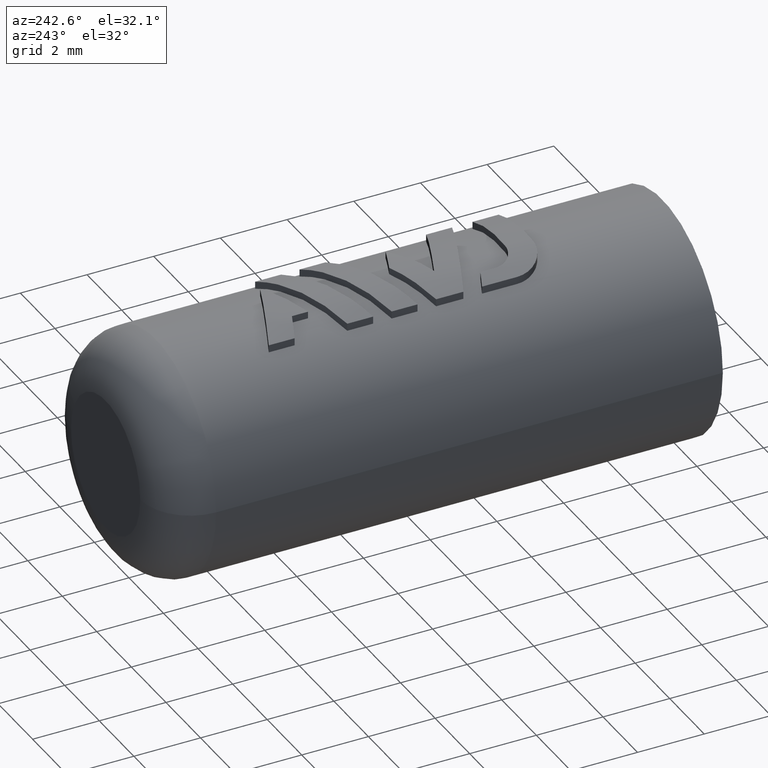
[diagram: clean part render]
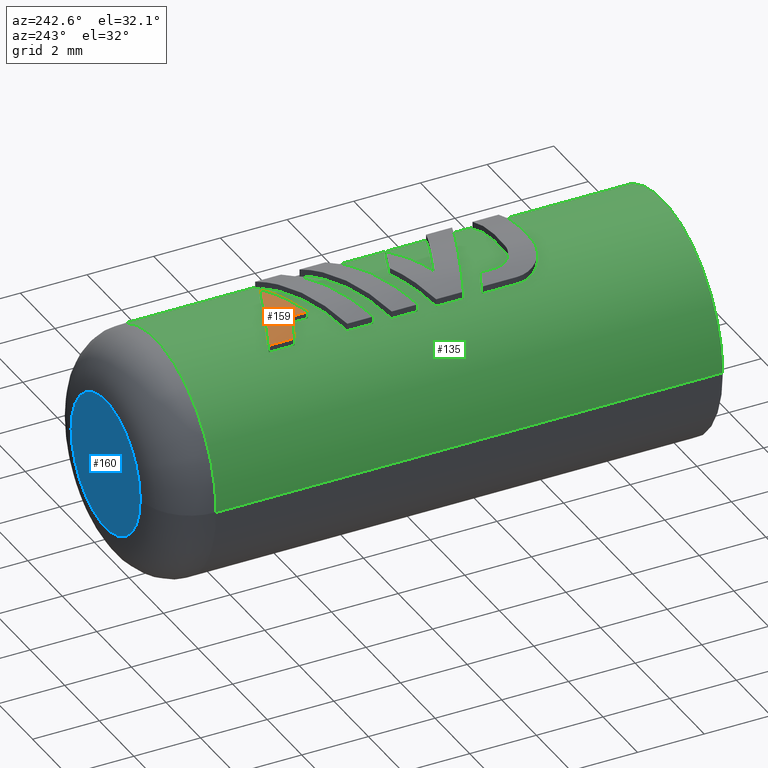
[diagram: same view with three faces highlighted in distinct colors, each labeled with its STEP entity id]
A machine part, auxiliary view with three faces highlighted in distinct colors.
Their STEP definitions:

[orange] entity #159 — the highlighted cylindrical surface (partial cylindrical patch) has radius 3.7 mm, axis along (-0, 1, 0).
#159=ADVANCED_FACE('',(#324),#325,.T.);
#324=FACE_OUTER_BOUND('',#2059,.T.);
#325=CYLINDRICAL_SURFACE('',#2060,3.7);
#2059=EDGE_LOOP('',(#2693,#2694,#2695,#2696,#2697));
#2060=AXIS2_PLACEMENT_3D('',#2698,#2699,#2700);
#2693=ORIENTED_EDGE('',*,*,#2954,.T.);
#2694=ORIENTED_EDGE('',*,*,#2957,.T.);
#2695=ORIENTED_EDGE('',*,*,#2958,.T.);
#2696=ORIENTED_EDGE('',*,*,#2951,.T.);
#2697=ORIENTED_EDGE('',*,*,#2959,.T.);
#2698=CARTESIAN_POINT('',(0.0,23.2725314835387,0.0));
#2699=DIRECTION('',(-0.0,1.0,0.0));
#2700=DIRECTION('',(1.0,0.0,-6.12323399573677E-17));
#2951=EDGE_CURVE('',#3300,#3298,#3301,.T.);
#2954=EDGE_CURVE('',#3305,#3303,#3306,.T.);
#2957=EDGE_CURVE('',#3303,#3308,#3310,.T.);
#2958=EDGE_CURVE('',#3308,#3300,#3311,.T.);
#2959=EDGE_CURVE('',#3298,#3305,#3312,.T.);
#3298=VERTEX_POINT('',#4554);
#3300=VERTEX_POINT('',#4557);
#3301=LINE('',#4558,#4559);
#3303=VERTEX_POINT('',#4562);
#3305=VERTEX_POINT('',#4565);
#3306=LINE('',#4566,#4567);
#3308=VERTEX_POINT('',#4570);
#3310=ELLIPSE('',#4573,3.99032017960652,3.7);
#3311=ELLIPSE('',#4574,3.99050633204291,3.7);
#3312=ELLIPSE('',#4575,3.99098610789636,3.7);
#4554=CARTESIAN_POINT('',(-1.50017849999999,11.810076438508,3.3822277374739));
#4557=CARTESIAN_POINT('',(-1.50017849999999,12.58459659544,3.3822277374739));
#4558=CARTESIAN_POINT('',(-1.50017849999999,23.2725314835387,3.38222773747389));
#4559=VECTOR('',#4984,1000.0);
#4562=CARTESIAN_POINT('',(-0.807717440271992,11.048320467,3.61076065901362));
#4565=CARTESIAN_POINT('',(-0.807717440271994,11.530100458664,3.61076065901362));
#4566=CARTESIAN_POINT('',(-0.807717440271992,23.2725314835387,3.61076065901362));
#4567=VECTOR('',#4987,1000.0);
#4570=CARTESIAN_POINT('',(0.74776430669801,11.676485876456,3.62365127207744));
#4573=AXIS2_PLACEMENT_3D('',#4990,#4991,#4992);
#4574=AXIS2_PLACEMENT_3D('',#4993,#4994,#4995);
#4575=AXIS2_PLACEMENT_3D('',#4996,#4997,#4998);
#4984=DIRECTION('',(0.0,-1.0,0.0));
#4987=DIRECTION('',(0.0,-1.0,0.0));
#4990=CARTESIAN_POINT('',(0.0,11.3745089019216,0.0));
#4991=DIRECTION('',(-0.37445796973655,0.92724388857559,-9.24446373305873E-33));
#4992=DIRECTION('',(-0.92724388857559,-0.37445796973655,-2.46519032881566E-32));
#4993=CARTESIAN_POINT('',(0.0,11.9785633048331,0.0));
#4994=DIRECTION('',(-0.374565060835224,-0.927200633736574,-1.23259516440783E-32));
#4995=DIRECTION('',(0.927200633736574,-0.374565060835224,6.16297582203916E-32));
#4996=CARTESIAN_POINT('',(0.0,11.2035239983702,0.0));
#4997=DIRECTION('',(0.374840859640752,0.927089170438196,3.08148791101958E-33));
#4998=DIRECTION('',(0.927089170438196,-0.374840859640752,1.23259516440783E-32));

[blue] entity #160 — the highlighted planar face has unit normal (0, -1, 0).
#160=ADVANCED_FACE('',(#326),#327,.F.);
#326=FACE_OUTER_BOUND('',#2061,.T.);
#327=PLANE('',#2062);
#2061=EDGE_LOOP('',(#2701,#2702));
#2062=AXIS2_PLACEMENT_3D('',#2703,#2704,#2705);
#2701=ORIENTED_EDGE('',*,*,#2769,.F.);
#2702=ORIENTED_EDGE('',*,*,#2960,.F.);
#2703=CARTESIAN_POINT('',(0.0,16.7,0.0));
#2704=DIRECTION('',(0.0,-1.0,0.0));
#2705=DIRECTION('',(1.0,0.0,-6.12323399573677E-17));
#2769=EDGE_CURVE('',#2994,#2997,#2998,.T.);
#2960=EDGE_CURVE('',#2997,#2994,#3313,.T.);
#2994=VERTEX_POINT('',#4151);
#2997=VERTEX_POINT('',#4154);
#2998=CIRCLE('',#4155,2.0);
#3313=CIRCLE('',#4576,2.0);
#4151=CARTESIAN_POINT('',(2.0,16.7,-1.22464679914735E-16));
#4154=CARTESIAN_POINT('',(-2.0,16.7,3.67394039744206E-16));
#4155=AXIS2_PLACEMENT_3D('',#4602,#4603,#4604);
#4576=AXIS2_PLACEMENT_3D('',#4999,#5000,#5001);
#4602=CARTESIAN_POINT('',(0.0,16.7,0.0));
#4603=DIRECTION('',(0.0,-1.0,0.0));
#4604=DIRECTION('',(1.0,0.0,-6.12323399573677E-17));
#4999=CARTESIAN_POINT('',(0.0,16.7,0.0));
#5000=DIRECTION('',(0.0,-1.0,0.0));
#5001=DIRECTION('',(1.0,0.0,-6.12323399573677E-17));

[green] entity #135 — the highlighted cylindrical surface (partial cylindrical patch) has radius 3.5 mm, axis along (-0, 1, 0).
#135=ADVANCED_FACE('',(#271,#272,#273,#274,#275,#276),#277,.T.);
#271=FACE_OUTER_BOUND('',#2006,.T.);
#272=FACE_BOUND('',#2007,.T.);
#273=FACE_BOUND('',#2008,.T.);
#274=FACE_BOUND('',#2009,.T.);
#275=FACE_BOUND('',#2010,.T.);
#276=FACE_BOUND('',#2011,.T.);
#277=CYLINDRICAL_SURFACE('',#2012,3.5);
#2006=EDGE_LOOP('',(#2462,#2463,#2464,#2465));
#2007=EDGE_LOOP('',(#2466,#2467,#2468,#2469,#2470,#2471,#2472));
#2008=EDGE_LOOP('',(#2473,#2474,#2475,#2476));
#2009=EDGE_LOOP('',(#2477,#2478,#2479,#2480));
#2010=EDGE_LOOP('',(#2481,#2482,#2483,#2484,#2485));
#2011=EDGE_LOOP('',(#2486,#2487,#2488,#2489,#2490,#2491,#2492,#2493,#2494,#2495,#2496,#2497,#2498,#2499,#2500,#2501,#2502,#2503,#2504,#2505,#2506,#2507,#2508,#2509,#2510,#2511,#2512,#2513,#2514,#2515,#2516,#2517,#2518,#2519,#2520,#2521,#2522,#2523,#2524,#2525));
#2012=AXIS2_PLACEMENT_3D('',#2526,#2527,#2528);
#2462=ORIENTED_EDGE('',*,*,#2772,.T.);
#2463=ORIENTED_EDGE('',*,*,#2771,.T.);
#2464=ORIENTED_EDGE('',*,*,#2774,.T.);
#2465=ORIENTED_EDGE('',*,*,#2898,.F.);
#2466=ORIENTED_EDGE('',*,*,#2899,.F.);
#2467=ORIENTED_EDGE('',*,*,#2900,.F.);
#2468=ORIENTED_EDGE('',*,*,#2901,.F.);
#2469=ORIENTED_EDGE('',*,*,#2902,.F.);
#2470=ORIENTED_EDGE('',*,*,#2903,.F.);
#2471=ORIENTED_EDGE('',*,*,#2904,.F.);
#2472=ORIENTED_EDGE('',*,*,#2905,.F.);
#2473=ORIENTED_EDGE('',*,*,#2906,.F.);
#2474=ORIENTED_EDGE('',*,*,#2907,.F.);
#2475=ORIENTED_EDGE('',*,*,#2908,.F.);
#2476=ORIENTED_EDGE('',*,*,#2909,.F.);
#2477=ORIENTED_EDGE('',*,*,#2910,.F.);
#2478=ORIENTED_EDGE('',*,*,#2911,.F.);
#2479=ORIENTED_EDGE('',*,*,#2912,.F.);
#2480=ORIENTED_EDGE('',*,*,#2913,.F.);
#2481=ORIENTED_EDGE('',*,*,#2914,.T.);
#2482=ORIENTED_EDGE('',*,*,#2915,.T.);
#2483=ORIENTED_EDGE('',*,*,#2916,.T.);
#2484=ORIENTED_EDGE('',*,*,#2917,.T.);
#2485=ORIENTED_EDGE('',*,*,#2918,.T.);
#2486=ORIENTED_EDGE('',*,*,#2856,.T.);
#2487=ORIENTED_EDGE('',*,*,#2858,.T.);
#2488=ORIENTED_EDGE('',*,*,#2860,.T.);
#2489=ORIENTED_EDGE('',*,*,#2897,.T.);
#2490=ORIENTED_EDGE('',*,*,#2895,.T.);
#2491=ORIENTED_EDGE('',*,*,#2893,.T.);
#2492=ORIENTED_EDGE('',*,*,#2891,.T.);
#2493=ORIENTED_EDGE('',*,*,#2889,.T.);
#2494=ORIENTED_EDGE('',*,*,#2887,.T.);
#2495=ORIENTED_EDGE('',*,*,#2885,.T.);
#2496=ORIENTED_EDGE('',*,*,#2883,.T.);
#2497=ORIENTED_EDGE('',*,*,#2881,.T.);
#2498=ORIENTED_EDGE('',*,*,#2879,.T.);
#2499=ORIENTED_EDGE('',*,*,#2877,.T.);
#2500=ORIENTED_EDGE('',*,*,#2875,.T.);
#2501=ORIENTED_EDGE('',*,*,#2873,.T.);
#2502=ORIENTED_EDGE('',*,*,#2871,.T.);
#2503=ORIENTED_EDGE('',*,*,#2869,.T.);
#2504=ORIENTED_EDGE('',*,*,#2865,.T.);
#2505=ORIENTED_EDGE('',*,*,#2868,.T.);
#2506=ORIENTED_EDGE('',*,*,#2862,.T.);
#2507=ORIENTED_EDGE('',*,*,#2919,.T.);
#2508=ORIENTED_EDGE('',*,*,#2819,.T.);
#2509=ORIENTED_EDGE('',*,*,#2822,.T.);
#2510=ORIENTED_EDGE('',*,*,#2824,.T.);
#2511=ORIENTED_EDGE('',*,*,#2826,.T.);
#2512=ORIENTED_EDGE('',*,*,#2828,.T.);
#2513=ORIENTED_EDGE('',*,*,#2830,.T.);
#2514=ORIENTED_EDGE('',*,*,#2832,.T.);
#2515=ORIENTED_EDGE('',*,*,#2834,.T.);
#2516=ORIENTED_EDGE('',*,*,#2836,.T.);
#2517=ORIENTED_EDGE('',*,*,#2838,.T.);
#2518=ORIENTED_EDGE('',*,*,#2840,.T.);
#2519=ORIENTED_EDGE('',*,*,#2842,.T.);
#2520=ORIENTED_EDGE('',*,*,#2844,.T.);
#2521=ORIENTED_EDGE('',*,*,#2846,.T.);
#2522=ORIENTED_EDGE('',*,*,#2848,.T.);
#2523=ORIENTED_EDGE('',*,*,#2850,.T.);
#2524=ORIENTED_EDGE('',*,*,#2852,.T.);
#2525=ORIENTED_EDGE('',*,*,#2854,.T.);
#2526=CARTESIAN_POINT('',(0.0,0.0,0.0));
#2527=DIRECTION('',(-0.0,1.0,0.0));
#2528=DIRECTION('',(1.0,0.0,-6.12323399573677E-17));
#2771=EDGE_CURVE('',#2995,#2999,#3001,.T.);
#2772=EDGE_CURVE('',#3002,#2995,#3003,.T.);
#2774=EDGE_CURVE('',#2999,#3004,#3006,.T.);
#2819=EDGE_CURVE('',#3092,#3093,#3094,.T.);
#2822=EDGE_CURVE('',#3093,#3097,#3098,.F.);
#2824=EDGE_CURVE('',#3097,#3100,#3101,.T.);
#2826=EDGE_CURVE('',#3100,#3103,#3104,.F.);
#2828=EDGE_CURVE('',#3103,#3106,#3107,.F.);
#2830=EDGE_CURVE('',#3106,#3109,#3110,.F.);
#2832=EDGE_CURVE('',#3109,#3112,#3113,.F.);
#2834=EDGE_CURVE('',#3112,#3115,#3116,.F.);
#2836=EDGE_CURVE('',#3115,#3118,#3119,.F.);
#2838=EDGE_CURVE('',#3118,#3121,#3122,.F.);
#2840=EDGE_CURVE('',#3121,#3124,#3125,.F.);
#2842=EDGE_CURVE('',#3124,#3127,#3128,.F.);
#2844=EDGE_CURVE('',#3127,#3130,#3131,.F.);
#2846=EDGE_CURVE('',#3130,#3133,#3134,.F.);
#2848=EDGE_CURVE('',#3133,#3136,#3137,.F.);
#2850=EDGE_CURVE('',#3136,#3139,#3140,.F.);
#2852=EDGE_CURVE('',#3139,#3142,#3143,.F.);
#2854=EDGE_CURVE('',#3142,#3145,#3146,.F.);
#2856=EDGE_CURVE('',#3145,#3148,#3149,.F.);
#2858=EDGE_CURVE('',#3148,#3151,#3152,.F.);
#2860=EDGE_CURVE('',#3151,#3154,#3155,.F.);
#2862=EDGE_CURVE('',#3157,#3158,#3159,.F.);
#2865=EDGE_CURVE('',#3162,#3163,#3164,.F.);
#2868=EDGE_CURVE('',#3163,#3157,#3167,.T.);
#2869=EDGE_CURVE('',#3168,#3162,#3169,.F.);
#2871=EDGE_CURVE('',#3171,#3168,#3172,.F.);
#2873=EDGE_CURVE('',#3174,#3171,#3175,.F.);
#2875=EDGE_CURVE('',#3177,#3174,#3178,.F.);
#2877=EDGE_CURVE('',#3180,#3177,#3181,.F.);
#2879=EDGE_CURVE('',#3183,#3180,#3184,.F.);
#2881=EDGE_CURVE('',#3186,#3183,#3187,.F.);
#2883=EDGE_CURVE('',#3189,#3186,#3190,.F.);
#2885=EDGE_CURVE('',#3192,#3189,#3193,.F.);
#2887=EDGE_CURVE('',#3195,#3192,#3196,.F.);
#2889=EDGE_CURVE('',#3198,#3195,#3199,.F.);
#2891=EDGE_CURVE('',#3201,#3198,#3202,.F.);
#2893=EDGE_CURVE('',#3204,#3201,#3205,.F.);
#2895=EDGE_CURVE('',#3207,#3204,#3208,.F.);
#2897=EDGE_CURVE('',#3154,#3207,#3210,.F.);
#2898=EDGE_CURVE('',#3002,#3004,#3211,.T.);
#2899=EDGE_CURVE('',#3212,#3213,#3214,.F.);
#2900=EDGE_CURVE('',#3215,#3212,#3216,.F.);
#2901=EDGE_CURVE('',#3217,#3215,#3218,.F.);
#2902=EDGE_CURVE('',#3219,#3217,#3220,.T.);
#2903=EDGE_CURVE('',#3221,#3219,#3222,.F.);
#2904=EDGE_CURVE('',#3223,#3221,#3224,.F.);
#2905=EDGE_CURVE('',#3213,#3223,#3225,.F.);
#2906=EDGE_CURVE('',#3226,#3227,#3228,.F.);
#2907=EDGE_CURVE('',#3229,#3226,#3230,.F.);
#2908=EDGE_CURVE('',#3231,#3229,#3232,.F.);
#2909=EDGE_CURVE('',#3227,#3231,#3233,.T.);
#2910=EDGE_CURVE('',#3234,#3235,#3236,.F.);
#2911=EDGE_CURVE('',#3237,#3234,#3238,.F.);
#2912=EDGE_CURVE('',#3239,#3237,#3240,.F.);
#2913=EDGE_CURVE('',#3235,#3239,#3241,.T.);
#2914=EDGE_CURVE('',#3242,#3243,#3244,.F.);
#2915=EDGE_CURVE('',#3243,#3245,#3246,.F.);
#2916=EDGE_CURVE('',#3245,#3247,#3248,.F.);
#2917=EDGE_CURVE('',#3247,#3249,#3250,.F.);
#2918=EDGE_CURVE('',#3249,#3242,#3251,.F.);
#2919=EDGE_CURVE('',#3158,#3092,#3252,.T.);
#2995=VERTEX_POINT('',#4152);
#2999=VERTEX_POINT('',#4156);
#3001=CIRCLE('',#4158,3.5);
#3002=VERTEX_POINT('',#4159);
#3003=LINE('',#4160,#4161);
#3004=VERTEX_POINT('',#4162);
#3006=LINE('',#4164,#4165);
#3092=VERTEX_POINT('',#4265);
#3093=VERTEX_POINT('',#4266);
#3094=B_SPLINE_CURVE_WITH_KNOTS('',3,(#4267,#4268,#4269,#4270),.UNSPECIFIED.,.F.,.F.,(4,4),(0.0035423170626319,0.00459450287159931),.UNSPECIFIED.);
#3097=VERTEX_POINT('',#4275);
#3098=ELLIPSE('',#4276,3.77487044193704,3.5);
#3100=VERTEX_POINT('',#4279);
#3101=LINE('',#4280,#4281);
#3103=VERTEX_POINT('',#4284);
#3104=ELLIPSE('',#4285,164.689539140622,3.5);
#3106=VERTEX_POINT('',#4288);
#3107=ELLIPSE('',#4289,55.1714357133699,3.5);
#3109=VERTEX_POINT('',#4292);
#3110=ELLIPSE('',#4293,33.2379846834179,3.5);
#3112=VERTEX_POINT('',#4296);
#3113=ELLIPSE('',#4297,23.8173686271052,3.5);
#3115=VERTEX_POINT('',#4300);
#3116=ELLIPSE('',#4301,18.5644896907975,3.5);
#3118=VERTEX_POINT('',#4304);
#3119=ELLIPSE('',#4305,14.9733616307628,3.5);
#3121=VERTEX_POINT('',#4308);
#3122=ELLIPSE('',#4309,12.4336535357546,3.5);
#3124=VERTEX_POINT('',#4312);
#3125=ELLIPSE('',#4313,10.6722242685897,3.5);
#3127=VERTEX_POINT('',#4316);
#3128=ELLIPSE('',#4317,9.37598716099796,3.5);
#3130=VERTEX_POINT('',#4320);
#3131=ELLIPSE('',#4321,8.37880585527817,3.5);
#3133=VERTEX_POINT('',#4324);
#3134=ELLIPSE('',#4325,7.58590916010106,3.5);
#3136=VERTEX_POINT('',#4328);
#3137=ELLIPSE('',#4329,6.93847720170389,3.5);
#3139=VERTEX_POINT('',#4332);
#3140=ELLIPSE('',#4333,6.4014777457546,3.5);
#3142=VERTEX_POINT('',#4336);
#3143=ELLIPSE('',#4337,5.95941595012769,3.5);
#3145=VERTEX_POINT('',#4340);
#3146=ELLIPSE('',#4341,5.590992395732,3.5);
#3148=VERTEX_POINT('',#4344);
#3149=ELLIPSE('',#4345,5.2792098561155,3.5);
#3151=VERTEX_POINT('',#4348);
#3152=ELLIPSE('',#4349,5.01151698464177,3.5);
#3154=VERTEX_POINT('',#4352);
#3155=ELLIPSE('',#4353,4.77940673764494,3.5);
#3157=VERTEX_POINT('',#4356);
#3158=VERTEX_POINT('',#4357);
#3159=CIRCLE('',#4358,3.5);
#3162=VERTEX_POINT('',#4363);
#3163=VERTEX_POINT('',#4364);
#3164=CIRCLE('',#4365,3.5);
#3167=LINE('',#4370,#4371);
#3168=VERTEX_POINT('',#4372);
#3169=ELLIPSE('',#4373,3.50106562303427,3.5);
#3171=VERTEX_POINT('',#4376);
#3172=ELLIPSE('',#4377,3.50947071392144,3.5);
#3174=VERTEX_POINT('',#4380);
#3175=ELLIPSE('',#4381,3.52607330659194,3.5);
#3177=VERTEX_POINT('',#4384);
#3178=ELLIPSE('',#4385,3.5509197723453,3.5);
#3180=VERTEX_POINT('',#4388);
#3181=ELLIPSE('',#4389,3.58436394837714,3.5);
#3183=VERTEX_POINT('',#4392);
#3184=ELLIPSE('',#4393,3.62706639169287,3.5);
#3186=VERTEX_POINT('',#4396);
#3187=ELLIPSE('',#4397,3.67996406715073,3.5);
#3189=VERTEX_POINT('',#4400);
#3190=ELLIPSE('',#4401,3.74403536980001,3.5);
#3192=VERTEX_POINT('',#4404);
#3193=ELLIPSE('',#4405,3.81873747870882,3.5);
#3195=VERTEX_POINT('',#4408);
#3196=ELLIPSE('',#4409,3.90485238736805,3.5);
#3198=VERTEX_POINT('',#4412);
#3199=ELLIPSE('',#4413,4.00364094298526,3.5);
#3201=VERTEX_POINT('',#4416);
#3202=ELLIPSE('',#4417,4.1171435228686,3.5);
#3204=VERTEX_POINT('',#4420);
#3205=ELLIPSE('',#4421,4.24793591656072,3.5);
#3207=VERTEX_POINT('',#4424);
#3208=ELLIPSE('',#4425,4.39919108209693,3.5);
#3210=ELLIPSE('',#4428,4.57618920226839,3.5);
#3211=CIRCLE('',#4429,3.5);
#3212=VERTEX_POINT('',#4430);
#3213=VERTEX_POINT('',#4431);
#3214=ELLIPSE('',#4432,3.77493388888295,3.5);
#3215=VERTEX_POINT('',#4433);
#3216=LINE('',#4434,#4435);
#3217=VERTEX_POINT('',#4436);
#3218=ELLIPSE('',#4437,3.7748450778119,3.5);
#3219=VERTEX_POINT('',#4438);
#3220=LINE('',#4439,#4440);
#3221=VERTEX_POINT('',#4441);
#3222=ELLIPSE('',#4442,3.77496393644214,3.5);
#3223=VERTEX_POINT('',#4443);
#3224=ELLIPSE('',#4444,3.77477843771684,3.5);
#3225=ELLIPSE('',#4445,3.77489606595012,3.5);
#3226=VERTEX_POINT('',#4446);
#3227=VERTEX_POINT('',#4447);
#3228=ELLIPSE('',#4448,3.77492817842447,3.5);
#3229=VERTEX_POINT('',#4449);
#3230=LINE('',#4450,#4451);
#3231=VERTEX_POINT('',#4452);
#3232=ELLIPSE('',#4453,3.7749284700253,3.5);
#3233=LINE('',#4454,#4455);
#3234=VERTEX_POINT('',#4456);
#3235=VERTEX_POINT('',#4457);
#3236=ELLIPSE('',#4458,3.77485382471708,3.5);
#3237=VERTEX_POINT('',#4459);
#3238=LINE('',#4460,#4461);
#3239=VERTEX_POINT('',#4462);
#3240=ELLIPSE('',#4463,3.7749284700253,3.5);
#3241=LINE('',#4464,#4465);
#3242=VERTEX_POINT('',#4466);
#3243=VERTEX_POINT('',#4467);
#3244=LINE('',#4468,#4469);
#3245=VERTEX_POINT('',#4470);
#3246=ELLIPSE('',#4471,3.77480328706762,3.5);
#3247=VERTEX_POINT('',#4472);
#3248=ELLIPSE('',#4473,3.77462719692509,3.5);
#3249=VERTEX_POINT('',#4474);
#3250=LINE('',#4475,#4476);
#3251=ELLIPSE('',#4477,3.77525712909115,3.5);
#3252=B_SPLINE_CURVE_WITH_KNOTS('',3,(#4478,#4479,#4480,#4481,#4482,#4483,#4484,#4485,#4486,#4487),.UNSPECIFIED.,.F.,.F.,(4,2,2,2,4),(6.50521303491303E-19,0.000398654839428773,0.000797309678857545,0.00119596451828632,0.00159461935771509),.UNSPECIFIED.);
#4152=CARTESIAN_POINT('',(3.5,15.2,-2.14313189850787E-16));
#4156=CARTESIAN_POINT('',(-3.5,15.2,-2.14313189850787E-16));
#4158=AXIS2_PLACEMENT_3D('',#4608,#4609,#4610);
#4159=CARTESIAN_POINT('',(3.5,5.20417042793042E-15,-2.14313189850787E-16));
#4160=CARTESIAN_POINT('',(3.5,0.0,2.14313189850787E-16));
#4161=VECTOR('',#4611,1.0);
#4162=CARTESIAN_POINT('',(-3.5,5.32907051820075E-15,-2.14313189850787E-16));
#4164=CARTESIAN_POINT('',(-3.5,0.0,-2.14313189850787E-16));
#4165=VECTOR('',#4615,1.0);
#4265=CARTESIAN_POINT('',(-1.50017849388224,5.13523361296858,3.16219298691481));
#4266=CARTESIAN_POINT('',(-1.5001785,6.18741942193599,3.16219298401248));
#4267=CARTESIAN_POINT('',(-1.50017849388224,5.13523361296858,3.16219298691481));
#4268=CARTESIAN_POINT('',(-1.50017849592149,5.48596221595772,3.16219298594737));
#4269=CARTESIAN_POINT('',(-1.50017849796075,5.83669081894685,3.16219298497992));
#4270=CARTESIAN_POINT('',(-1.5001785,6.18741942193599,3.16219298401248));
#4275=CARTESIAN_POINT('',(-1.06418862337799,6.01126846246599,3.3342919149158));
#4276=AXIS2_PLACEMENT_3D('',#4740,#4741,#4742);
#4279=CARTESIAN_POINT('',(-1.06418862337799,5.58540245710795,3.3342919149158));
#4280=CARTESIAN_POINT('',(-1.06418862337799,13.4604426438105,3.3342919149158));
#4281=VECTOR('',#4744,1000.0);
#4284=CARTESIAN_POINT('',(-1.06359121896199,5.55729844646197,3.33448252641199));
#4285=AXIS2_PLACEMENT_3D('',#4746,#4747,#4748);
#4288=CARTESIAN_POINT('',(-1.06180567317399,5.529209104228,3.33505153069867));
#4289=AXIS2_PLACEMENT_3D('',#4750,#4751,#4752);
#4292=CARTESIAN_POINT('',(-1.058841320458,5.501214439926,3.33599386361707));
#4293=AXIS2_PLACEMENT_3D('',#4754,#4755,#4756);
#4296=CARTESIAN_POINT('',(-1.054708162004,5.47339379632999,3.33730290698974));
#4297=AXIS2_PLACEMENT_3D('',#4758,#4759,#4760);
#4300=CARTESIAN_POINT('',(-1.049416199002,5.44582784970598,3.3389707457946));
#4301=AXIS2_PLACEMENT_3D('',#4762,#4763,#4764);
#4304=CARTESIAN_POINT('',(-1.04178729127,5.414094740582,3.34135889119207));
#4305=AXIS2_PLACEMENT_3D('',#4766,#4767,#4768);
#4308=CARTESIAN_POINT('',(-1.03258086250199,5.38271167310799,3.34421541806066));
#4309=AXIS2_PLACEMENT_3D('',#4770,#4771,#4772);
#4312=CARTESIAN_POINT('',(-1.02184558515599,5.35178799362799,3.34751125466326));
#4313=AXIS2_PLACEMENT_3D('',#4774,#4775,#4776);
#4316=CARTESIAN_POINT('',(-1.00963079843599,5.32143171499399,3.35121554825253));
#4317=AXIS2_PLACEMENT_3D('',#4778,#4779,#4780);
#4320=CARTESIAN_POINT('',(-0.995985841545992,5.29175285029599,3.35529614243511));
#4321=AXIS2_PLACEMENT_3D('',#4782,#4783,#4784);
#4324=CARTESIAN_POINT('',(-0.980960053690002,5.262859412386,3.35971983550184));
#4325=AXIS2_PLACEMENT_3D('',#4786,#4787,#4788);
#4328=CARTESIAN_POINT('',(-0.964603440817994,5.23486141435399,3.36445243716746));
#4329=AXIS2_PLACEMENT_3D('',#4790,#4791,#4792);
#4332=CARTESIAN_POINT('',(-0.946804656347986,5.20760417112799,3.36950455448836));
#4333=AXIS2_PLACEMENT_3D('',#4794,#4795,#4796);
#4336=CARTESIAN_POINT('',(-0.927650377259991,5.18120769698799,3.37482811081829));
#4337=AXIS2_PLACEMENT_3D('',#4798,#4799,#4800);
#4340=CARTESIAN_POINT('',(-0.907216612597997,5.15575333494599,3.38037838382425));
#4341=AXIS2_PLACEMENT_3D('',#4802,#4803,#4804);
#4344=CARTESIAN_POINT('',(-0.885579371405998,5.13132042777599,3.38611121744991));
#4345=AXIS2_PLACEMENT_3D('',#4806,#4807,#4808);
#4348=CARTESIAN_POINT('',(-0.862813995981998,5.10799031848999,3.39198349175487));
#4349=AXIS2_PLACEMENT_3D('',#4810,#4811,#4812);
#4352=CARTESIAN_POINT('',(-0.838997828861997,5.08584368335399,3.39795271349747));
#4353=AXIS2_PLACEMENT_3D('',#4814,#4815,#4816);
#4356=CARTESIAN_POINT('',(1.49798357216801,4.13511456004999,3.16323334857148));
#4357=CARTESIAN_POINT('',(-0.5000595,4.13511456004999,3.46409302653086));
#4358=AXIS2_PLACEMENT_3D('',#4818,#4819,#4820);
#4363=CARTESIAN_POINT('',(-0.397442623377987,4.91865645710799,3.47736097653414));
#4364=CARTESIAN_POINT('',(1.49798357216801,4.91865645710799,3.16323334857148));
#4365=AXIS2_PLACEMENT_3D('',#4823,#4824,#4825);
#4370=CARTESIAN_POINT('',(1.49798357216801,13.4604426438105,3.16323334857148));
#4371=VECTOR('',#4828,1000.0);
#4372=CARTESIAN_POINT('',(-0.429674458509997,4.91945188508599,3.47352556629487));
#4373=AXIS2_PLACEMENT_3D('',#4829,#4830,#4831);
#4376=CARTESIAN_POINT('',(-0.461890958483991,4.92182350060799,3.46938852573054));
#4377=AXIS2_PLACEMENT_3D('',#4833,#4834,#4835);
#4380=CARTESIAN_POINT('',(-0.493982776955983,4.92574796756399,3.46496479290495));
#4381=AXIS2_PLACEMENT_3D('',#4837,#4838,#4839);
#4384=CARTESIAN_POINT('',(-0.525840567581993,4.93120194984399,3.46027335589041));
#4385=AXIS2_PLACEMENT_3D('',#4841,#4842,#4843);
#4388=CARTESIAN_POINT('',(-0.557354317271997,4.938162778084,3.45533734460447));
#4389=AXIS2_PLACEMENT_3D('',#4845,#4846,#4847);
#4392=CARTESIAN_POINT('',(-0.588414012935992,4.94660778292,3.45018390080595));
#4393=AXIS2_PLACEMENT_3D('',#4849,#4850,#4851);
#4396=CARTESIAN_POINT('',(-0.618910308229991,4.95651229474999,3.4448439776522));
#4397=AXIS2_PLACEMENT_3D('',#4853,#4854,#4855);
#4400=CARTESIAN_POINT('',(-0.648837202439996,4.96788098079599,3.43933282552443));
#4401=AXIS2_PLACEMENT_3D('',#4857,#4858,#4859);
#4404=CARTESIAN_POINT('',(-0.678240034293992,4.98071184081999,3.43365555288833));
#4405=AXIS2_PLACEMENT_3D('',#4861,#4862,#4863);
#4408=CARTESIAN_POINT('',(-0.707027459589998,4.99495286863398,3.4278436620397));
#4409=AXIS2_PLACEMENT_3D('',#4865,#4866,#4867);
#4412=CARTESIAN_POINT('',(-0.735108800871988,5.01055005781199,3.42193147957123));
#4413=AXIS2_PLACEMENT_3D('',#4869,#4870,#4871);
#4416=CARTESIAN_POINT('',(-0.762393380683988,5.02745206891199,3.41595613746565));
#4417=AXIS2_PLACEMENT_3D('',#4873,#4874,#4875);
#4420=CARTESIAN_POINT('',(-0.788789188077996,5.04560689574599,3.40995771480692));
#4421=AXIS2_PLACEMENT_3D('',#4877,#4878,#4879);
#4424=CARTESIAN_POINT('',(-0.81420554559799,5.06496053188799,3.40397845608892));
#4425=AXIS2_PLACEMENT_3D('',#4881,#4882,#4883);
#4428=AXIS2_PLACEMENT_3D('',#4885,#4886,#4887);
#4429=AXIS2_PLACEMENT_3D('',#4888,#4889,#4890);
#4430=CARTESIAN_POINT('',(1.49798357216801,6.308357145146,3.16323334857149));
#4431=CARTESIAN_POINT('',(-0.595939575037989,7.154456485654,3.44889199930986));
#4432=AXIS2_PLACEMENT_3D('',#4891,#4892,#4893);
#4433=CARTESIAN_POINT('',(1.497983572168,5.533601626876,3.16323334857149));
#4434=CARTESIAN_POINT('',(1.49798357216801,15.2988638005305,3.16323334857148));
#4435=VECTOR('',#4894,1000.0);
#4436=CARTESIAN_POINT('',(-1.5001785,6.744877084838,3.16219298401248));
#4437=AXIS2_PLACEMENT_3D('',#4895,#4896,#4897);
#4438=CARTESIAN_POINT('',(-1.50017849999999,7.563865199494,3.16219298401248));
#4439=CARTESIAN_POINT('',(-1.50017849999999,15.2988638005305,3.16219298401248));
#4440=VECTOR('',#4898,1000.0);
#4441=CARTESIAN_POINT('',(0.0273012484620033,8.18111464343799,3.49989351864203));
#4442=AXIS2_PLACEMENT_3D('',#4899,#4900,#4901);
#4443=CARTESIAN_POINT('',(0.986262684628003,7.793737217676,3.35816704720155));
#4444=AXIS2_PLACEMENT_3D('',#4902,#4903,#4904);
#4445=AXIS2_PLACEMENT_3D('',#4905,#4906,#4907);
#4446=CARTESIAN_POINT('',(1.49798357216801,10.107533193302,3.16323334857149));
#4447=CARTESIAN_POINT('',(-1.50017849999999,8.89606771272999,3.16219298401248));
#4448=AXIS2_PLACEMENT_3D('',#4908,#4909,#4910);
#4449=CARTESIAN_POINT('',(1.49798357216801,9.332788342968,3.16323334857149));
#4450=CARTESIAN_POINT('',(1.49798357216801,17.3970651666805,3.16323334857148));
#4451=VECTOR('',#4911,1000.0);
#4452=CARTESIAN_POINT('',(-1.5001785,8.12132219565,3.16219298401248));
#4453=AXIS2_PLACEMENT_3D('',#4912,#4913,#4914);
#4454=CARTESIAN_POINT('',(-1.50017849999999,17.3970651666805,3.16219298401248));
#4455=VECTOR('',#4915,1000.0);
#4456=CARTESIAN_POINT('',(1.497983572168,11.43953034877,3.16323334857149));
#4457=CARTESIAN_POINT('',(-1.50017849999999,10.228234888428,3.16219298401248));
#4458=AXIS2_PLACEMENT_3D('',#4916,#4917,#4918);
#4459=CARTESIAN_POINT('',(1.497983572168,10.665010858584,3.16323334857149));
#4460=CARTESIAN_POINT('',(1.497983572168,18.7291272924364,3.16323334857148));
#4461=VECTOR('',#4919,1000.0);
#4462=CARTESIAN_POINT('',(-1.5001785,9.453544711266,3.16219298401248));
#4463=AXIS2_PLACEMENT_3D('',#4920,#4921,#4922);
#4464=CARTESIAN_POINT('',(-1.50017849999999,18.7291272924364,3.16219298401248));
#4465=VECTOR('',#4923,1000.0);
#4466=CARTESIAN_POINT('',(-1.50017849999999,11.810076438508,3.16219298401248));
#4467=CARTESIAN_POINT('',(-1.50017849999999,12.58459659544,3.16219298401248));
#4468=CARTESIAN_POINT('',(-1.50017849999999,19.7877942584537,3.16219298401248));
#4469=VECTOR('',#4924,1000.0);
#4470=CARTESIAN_POINT('',(0.74776430669801,11.676485876456,3.41918828695181));
#4471=AXIS2_PLACEMENT_3D('',#4925,#4926,#4927);
#4472=CARTESIAN_POINT('',(-0.807717440271992,11.048320467,3.40552382706104));
#4473=AXIS2_PLACEMENT_3D('',#4928,#4929,#4930);
#4474=CARTESIAN_POINT('',(-0.807717440271992,11.530100458664,3.40552382706104));
#4475=CARTESIAN_POINT('',(-0.807717440271992,19.7877942584537,3.40552382706104));
#4476=VECTOR('',#4931,1000.0);
#4477=AXIS2_PLACEMENT_3D('',#4932,#4933,#4934);
#4478=CARTESIAN_POINT('',(-0.5000595,4.13511456004999,3.46409302653086));
#4479=CARTESIAN_POINT('',(-0.633563764526408,4.13512932976426,3.44482100489182));
#4480=CARTESIAN_POINT('',(-0.763066001686101,4.16161174169112,3.41806274080861));
#4481=CARTESIAN_POINT('',(-1.0034031073635,4.26131973697876,3.35538445296013));
#4482=CARTESIAN_POINT('',(-1.11271003467281,4.33435947632545,3.31984458927826));
#4483=CARTESIAN_POINT('',(-1.29566528700748,4.51575574656151,3.2528054325867));
#4484=CARTESIAN_POINT('',(-1.37059197904377,4.62591566074602,3.22095826318575));
#4485=CARTESIAN_POINT('',(-1.47226034539071,4.86672673041061,3.17577454829428));
#4486=CARTESIAN_POINT('',(-1.50016356807809,5.00024641837578,3.16220006787759));
#4487=CARTESIAN_POINT('',(-1.50017849388224,5.13523361296858,3.16219298691495));
#4608=CARTESIAN_POINT('',(0.0,15.2,0.0));
#4609=DIRECTION('',(0.0,-1.0,0.0));
#4610=DIRECTION('',(1.0,0.0,-6.12323399573677E-17));
#4611=DIRECTION('',(-0.0,1.0,-0.0));
#4615=DIRECTION('',(-0.0,-1.0,-0.0));
#4740=CARTESIAN_POINT('',(0.0,5.58130928883222,0.0));
#4741=DIRECTION('',(-0.374605889774888,-0.927184138855904,-9.24446373305873E-33));
#4742=DIRECTION('',(0.927184138855904,-0.374605889774888,0.0));
#4744=DIRECTION('',(0.0,-1.0,0.0));
#4746=CARTESIAN_POINT('',(0.0,-44.4777835518108,0.0));
#4747=DIRECTION('',(-0.999774148431832,-0.021252108775479,0.0));
#4748=DIRECTION('',(0.021252108775479,-0.999774148431832,1.92592994438724E-34));
#4750=CARTESIAN_POINT('',(0.0,-11.1746038924243,0.0));
#4751=DIRECTION('',(-0.997985741835146,-0.0634386246205993,1.23259516440783E-32));
#4752=DIRECTION('',(0.0634386246205993,-0.997985741835146,0.0));
#4754=CARTESIAN_POINT('',(0.0,-4.49823911881569,0.0));
#4755=DIRECTION('',(-0.994440372875625,-0.105301209845798,3.69778549322349E-32));
#4756=DIRECTION('',(0.105301209845798,-0.994440372875625,-1.54074395550979E-33));
#4758=CARTESIAN_POINT('',(0.0,-1.62593718734406,0.0));
#4759=DIRECTION('',(-0.989143686495174,-0.146951582049112,1.23259516440783E-32));
#4760=DIRECTION('',(0.146951582049112,-0.989143686495174,-4.62223186652937E-33));
#4762=CARTESIAN_POINT('',(0.0,-0.0206032113439538,0.0));
#4763=DIRECTION('',(-0.982067050918068,-0.188531980048714,4.93038065763132E-32));
#4764=DIRECTION('',(0.188531980048714,-0.982067050918068,-1.54074395550979E-33));
#4766=CARTESIAN_POINT('',(0.0,1.08068936209164,0.0));
#4767=DIRECTION('',(-0.972297107053996,-0.233748445159386,0.0));
#4768=DIRECTION('',(0.233748445159386,-0.972297107053996,-6.16297582203916E-33));
#4770=CARTESIAN_POINT('',(0.0,1.86282837233279,0.0));
#4771=DIRECTION('',(-0.959562961313936,-0.281494091011568,-2.46519032881566E-32));
#4772=DIRECTION('',(0.281494091011568,-0.959562961313936,2.46519032881566E-32));
#4774=CARTESIAN_POINT('',(0.0,2.40829391006047,0.0));
#4775=DIRECTION('',(-0.944693648842253,-0.32795412764152,4.93038065763132E-32));
#4776=DIRECTION('',(0.32795412764152,-0.944693648842253,-2.77333911991762E-32));
#4778=CARTESIAN_POINT('',(0.0,2.81228975964522,0.0));
#4779=DIRECTION('',(-0.927713085904695,-0.373294026527599,2.46519032881566E-32));
#4780=DIRECTION('',(0.373294026527599,-0.927713085904695,-1.54074395550979E-32));
#4782=CARTESIAN_POINT('',(0.0,3.1254045598128,0.0));
#4783=DIRECTION('',(-0.908575523171428,-0.417720622777672,-3.6977854932235E-32));
#4784=DIRECTION('',(0.417720622777672,-0.908575523171428,3.08148791101958E-33));
#4786=CARTESIAN_POINT('',(0.0,3.37654844652395,0.0));
#4787=DIRECTION('',(-0.887201716676642,-0.46138174424875,3.08148791101958E-32));
#4788=DIRECTION('',(0.46138174424875,-0.887201716676642,-2.46519032881566E-32));
#4790=CARTESIAN_POINT('',(0.0,3.58372707199214,0.0));
#4791=DIRECTION('',(-0.863450573828862,-0.504433451066251,-3.08148791101958E-32));
#4792=DIRECTION('',(0.504433451066251,-0.863450573828862,3.08148791101958E-32));
#4794=CARTESIAN_POINT('',(0.0,3.75765769590198,0.0));
#4795=DIRECTION('',(-0.837296719685794,-0.546748756929003,2.46519032881566E-32));
#4796=DIRECTION('',(0.546748756929003,-0.837296719685794,-3.69778549322349E-32));
#4798=CARTESIAN_POINT('',(0.0,3.90281454620386,0.0));
#4799=DIRECTION('',(-0.809365065349929,-0.587305875154596,4.93038065763132E-32));
#4800=DIRECTION('',(0.587305875154596,-0.809365065349929,-6.16297582203916E-33));
#4802=CARTESIAN_POINT('',(0.0,4.02563265040394,0.0));
#4803=DIRECTION('',(-0.779817491661596,-0.626006932628239,-3.08148791101958E-32));
#4804=DIRECTION('',(0.626006932628239,-0.779817491661596,1.23259516440783E-32));
#4806=CARTESIAN_POINT('',(0.0,4.13131870014219,0.0));
#4807=DIRECTION('',(-0.74863887790015,-0.662978001517701,-5.54667823983524E-32));
#4808=DIRECTION('',(0.662978001517701,-0.74863887790015,-3.6977854932235E-32));
#4810=CARTESIAN_POINT('',(0.0,4.22377275366442,0.0));
#4811=DIRECTION('',(-0.715716112426677,-0.698391327561307,1.23259516440783E-32));
#4812=DIRECTION('',(0.698391327561307,-0.715716112426677,-1.23259516440783E-32));
#4814=CARTESIAN_POINT('',(0.0,4.30566025996428,0.0));
#4815=DIRECTION('',(-0.680973065297791,-0.732308462561324,2.46519032881566E-32));
#4816=DIRECTION('',(0.732308462561324,-0.680973065297791,6.16297582203916E-33));
#4818=CARTESIAN_POINT('',(0.0,4.13511456004999,0.0));
#4819=DIRECTION('',(4.9960036108132E-16,1.0,2.23179957640779E-34));
#4820=DIRECTION('',(-1.0,4.9960036108132E-16,6.12323399573677E-17));
#4823=CARTESIAN_POINT('',(0.0,4.91865645710799,0.0));
#4824=DIRECTION('',(-4.9960036108132E-16,-1.0,-2.23179957640779E-34));
#4825=DIRECTION('',(1.0,-4.9960036108132E-16,-6.12323399573677E-17));
#4828=DIRECTION('',(0.0,-1.0,0.0));
#4829=CARTESIAN_POINT('',(0.0,4.90884823548521,0.0));
#4830=DIRECTION('',(-0.0246708221697355,-0.999695628945865,4.0444528832132E-33));
#4831=DIRECTION('',(0.999695628945865,-0.0246708221697355,-2.09541177949332E-31));
#4833=CARTESIAN_POINT('',(0.0,4.88782142814523,0.0));
#4834=DIRECTION('',(-0.0734162756428558,-0.99730138397113,-1.54074395550979E-33));
#4835=DIRECTION('',(0.99730138397113,-0.0734162756428559,4.93038065763132E-32));
#4837=CARTESIAN_POINT('',(0.0,4.86533945295496,0.0));
#4838=DIRECTION('',(-0.12138445063063,-0.992605568765912,3.08148791101958E-33));
#4839=DIRECTION('',(0.992605568765912,-0.12138445063063,-1.23259516440783E-32));
#4841=CARTESIAN_POINT('',(0.0,4.84117922443393,0.0));
#4842=DIRECTION('',(-0.168742800716732,-0.985660117487906,1.84889274661175E-32));
#4843=DIRECTION('',(0.985660117487906,-0.168742800716732,-1.23259516440783E-32));
#4845=CARTESIAN_POINT('',(0.0,4.81505309708692,0.0));
#4846=DIRECTION('',(-0.215683429399368,-0.976463342006513,9.24446373305873E-33));
#4847=DIRECTION('',(0.976463342006513,-0.215683429399368,2.46519032881566E-32));
#4849=CARTESIAN_POINT('',(0.0,4.78662040768717,0.0));
#4850=DIRECTION('',(-0.262370646687077,-0.964967172372721,3.08148791101958E-32));
#4851=DIRECTION('',(0.964967172372721,-0.262370646687077,4.93038065763132E-32));
#4853=CARTESIAN_POINT('',(0.0,4.75550412603725,0.0));
#4854=DIRECTION('',(-0.308894700261042,-0.951096243369009,-1.84889274661175E-32));
#4855=DIRECTION('',(0.951096243369009,-0.308894700261041,-4.93038065763132E-32));
#4857=CARTESIAN_POINT('',(0.0,4.72139945826497,0.0));
#4858=DIRECTION('',(-0.355121303699922,-0.93482022852443,-1.54074395550979E-32));
#4859=DIRECTION('',(0.93482022852443,-0.355121303699922,-2.46519032881566E-32));
#4861=CARTESIAN_POINT('',(0.0,4.68474024917491,0.0));
#4862=DIRECTION('',(-0.399958423246409,-0.916533283451423,9.24446373305873E-33));
#4863=DIRECTION('',(0.916533283451423,-0.399958423246409,3.69778549322349E-32));
#4865=CARTESIAN_POINT('',(0.0,4.64518912235433,0.0));
#4866=DIRECTION('',(-0.443406376070308,-0.896320693535632,-6.16297582203916E-33));
#4867=DIRECTION('',(0.896320693535632,-0.443406376070308,3.08148791101958E-32));
#4869=CARTESIAN_POINT('',(0.0,4.60224936738274,0.0));
#4870=DIRECTION('',(-0.485558336109801,-0.874204268025661,-2.46519032881566E-32));
#4871=DIRECTION('',(0.874204268025661,-0.485558336109801,-3.69778549322349E-32));
#4873=CARTESIAN_POINT('',(0.0,4.55517133482434,0.0));
#4874=DIRECTION('',(-0.526614909044732,-0.850103956920452,3.08148791101958E-32));
#4875=DIRECTION('',(0.850103956920452,-0.526614909044732,-6.16297582203916E-32));
#4877=CARTESIAN_POINT('',(0.0,4.50308395244924,0.0));
#4878=DIRECTION('',(-0.566692216965175,-0.823929566911574,6.16297582203917E-33));
#4879=DIRECTION('',(0.823929566911574,-0.566692216965175,-6.16297582203916E-33));
#4881=CARTESIAN_POINT('',(0.0,4.44497248435177,0.0));
#4882=DIRECTION('',(-0.605821216929008,-0.795600812668424,1.42203341455081E-48));
#4883=DIRECTION('',(0.795600812668424,-0.605821216929008,-2.46519032881566E-32));
#4885=CARTESIAN_POINT('',(0.0,4.37913512596962,0.0));
#4886=DIRECTION('',(-0.644233917102609,-0.764828516763483,-2.46519032881566E-32));
#4887=DIRECTION('',(0.764828516763483,-0.644233917102609,-6.77927340424307E-32));
#4888=CARTESIAN_POINT('',(0.0,5.20417042793042E-15,0.0));
#4889=DIRECTION('',(0.0,-1.0,0.0));
#4890=DIRECTION('',(1.0,0.0,-6.12323399573677E-17));
#4891=CARTESIAN_POINT('',(0.0,6.91365295755171,0.0));
#4892=DIRECTION('',(0.37464445827513,0.927168555271227,1.54074395550979E-32));
#4893=DIRECTION('',(0.927168555271227,-0.37464445827513,0.0));
#4894=DIRECTION('',(0.0,-1.0,0.0));
#4895=CARTESIAN_POINT('',(0.0,6.13879597385314,0.0));
#4896=DIRECTION('',(-0.374590469627021,-0.927190368837278,-4.31408307542741E-32));
#4897=DIRECTION('',(0.927190368837278,-0.374590469627021,8.62816615085482E-32));
#4898=DIRECTION('',(0.0,-1.0,0.0));
#4899=CARTESIAN_POINT('',(0.0,8.17008230048934,0.0));
#4900=DIRECTION('',(-0.374662721697119,0.927161175292898,1.84889274661174E-32));
#4901=DIRECTION('',(-0.927161175292898,-0.374662721697119,-2.46519032881566E-32));
#4902=CARTESIAN_POINT('',(0.0,8.19214312378188,0.0));
#4903=DIRECTION('',(0.374549951201191,0.927206737494495,3.38963670212154E-32));
#4904=DIRECTION('',(0.927206737494495,-0.374549951201191,2.46519032881566E-32));
#4905=CARTESIAN_POINT('',(0.0,7.39524282345862,0.0));
#4906=DIRECTION('',(0.374621466961797,-0.927177845125406,1.54074395550979E-32));
#4907=DIRECTION('',(-0.927177845125406,-0.374621466961797,-4.93038065763132E-32));
#4908=CARTESIAN_POINT('',(0.0,9.50224390457678,0.0));
#4909=DIRECTION('',(-0.374640987210496,0.927169957829709,-6.16297582203916E-33));
#4910=DIRECTION('',(-0.927169957829709,-0.374640987210496,4.93038065763132E-32));
#4911=DIRECTION('',(0.0,-1.0,0.0));
#4912=CARTESIAN_POINT('',(0.0,8.72749872111385,0.0));
#4913=DIRECTION('',(0.374641164459304,-0.927169886208874,4.00593428432545E-32));
#4914=DIRECTION('',(-0.927169886208874,-0.374641164459304,-2.46519032881566E-32));
#4915=DIRECTION('',(0.0,-1.0,0.0));
#4916=CARTESIAN_POINT('',(0.0,10.8343260079246,0.0));
#4917=DIRECTION('',(-0.374595787424494,0.927188220397468,8.28614432004484E-49));
#4918=DIRECTION('',(-0.927188220397468,-0.374595787424494,-1.23259516440783E-32));
#4919=DIRECTION('',(0.0,-1.0,0.0));
#4920=CARTESIAN_POINT('',(0.0,10.0597212367298,0.0));
#4921=DIRECTION('',(0.374641164459301,-0.927169886208875,-9.24446373305873E-33));
#4922=DIRECTION('',(-0.927169886208875,-0.374641164459301,-3.07902494602621E-48));
#4923=DIRECTION('',(0.0,-1.0,0.0));
#4924=DIRECTION('',(0.0,-1.0,0.0));
#4925=CARTESIAN_POINT('',(0.0,11.9785633048331,0.0));
#4926=DIRECTION('',(-0.374565060835224,-0.927200633736574,-1.23259516440783E-32));
#4927=DIRECTION('',(0.927200633736574,-0.374565060835224,6.16297582203916E-32));
#4928=CARTESIAN_POINT('',(0.0,11.3745089019216,0.0));
#4929=DIRECTION('',(-0.37445796973655,0.92724388857559,-9.24446373305873E-33));
#4930=DIRECTION('',(-0.92724388857559,-0.374457969736549,-2.46519032881566E-32));
#4931=DIRECTION('',(0.0,-1.0,0.0));
#4932=CARTESIAN_POINT('',(0.0,11.2035239983702,0.0));
#4933=DIRECTION('',(0.374840859640752,0.927089170438196,3.08148791101958E-33));
#4934=DIRECTION('',(0.927089170438196,-0.374840859640752,1.23259516440783E-32));